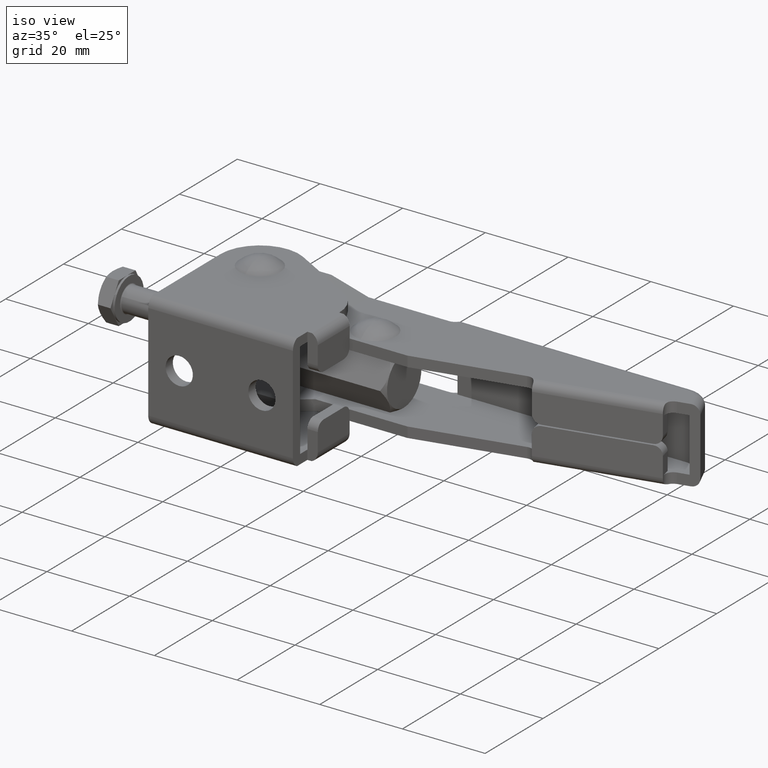
[diagram: clean part render]
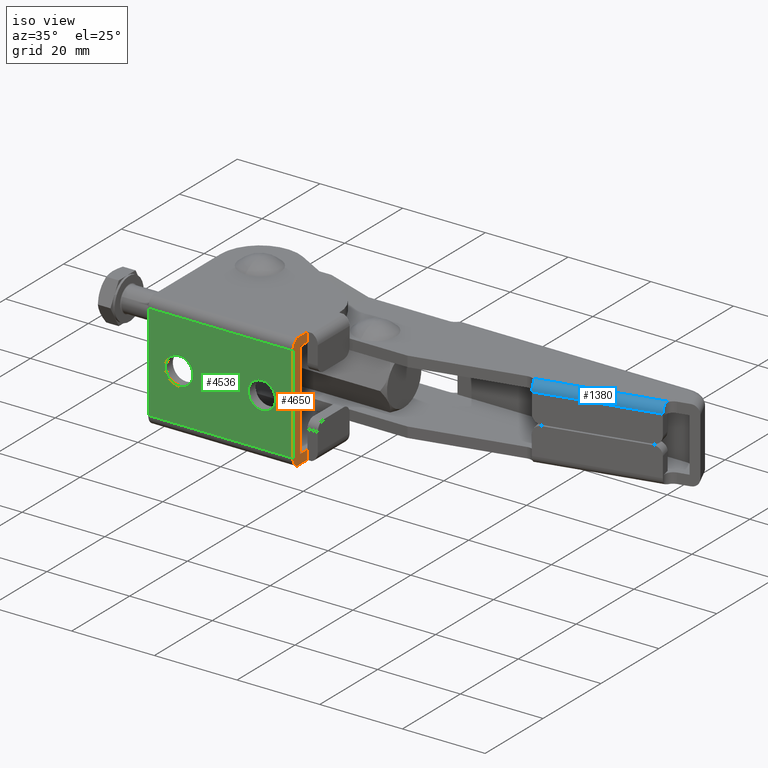
[diagram: same view with three faces highlighted in distinct colors, each labeled with its STEP entity id]
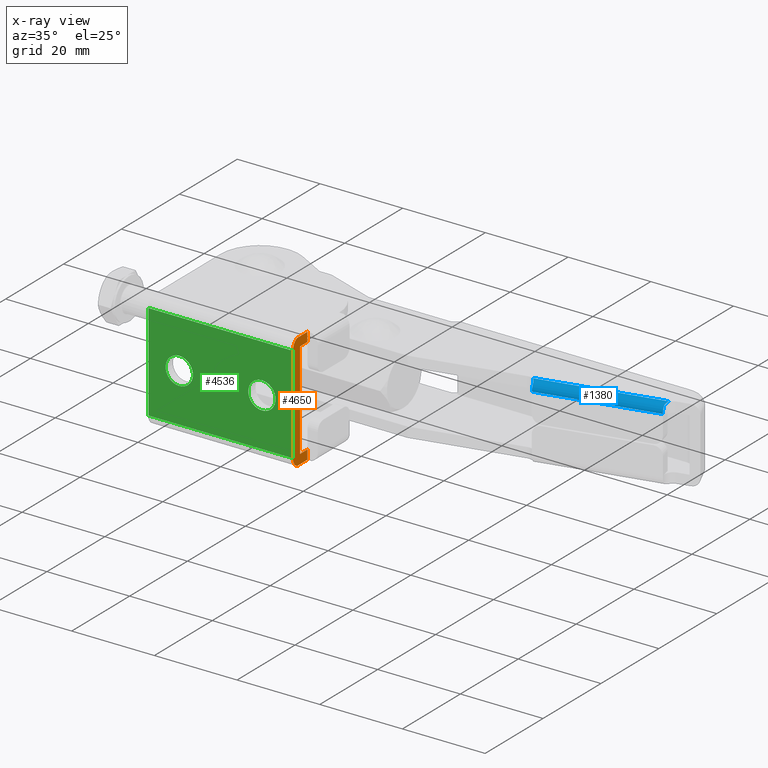
[diagram: x-ray of the same camera — body ghosted, the three highlighted faces saturated]
A machine part, iso view with three faces highlighted in distinct colors.
The next image is the same camera in x-ray (body ghosted, the three faces saturated) — at least one of them is partly hidden behind the body in this view.
Their STEP definitions:

[orange] entity #4650 — the highlighted planar face has unit normal (-1, 0, 0).
#262 = ORIENTED_EDGE ( 'NONE', *, *, #628, .T. ) ;
#378 = EDGE_CURVE ( 'NONE', #6844, #4172, #2910, .T. ) ;
#411 = ORIENTED_EDGE ( 'NONE', *, *, #4470, .F. ) ;
#423 = EDGE_CURVE ( 'NONE', #3513, #1820, #2400, .T. ) ;
#428 = CARTESIAN_POINT ( 'NONE',  ( 17.50000000000000000, -2.168404344971008900E-016, 11.73999999999999800 ) ) ;
#439 = ORIENTED_EDGE ( 'NONE', *, *, #6896, .T. ) ;
#441 = ORIENTED_EDGE ( 'NONE', *, *, #5211, .F. ) ;
#486 = EDGE_CURVE ( 'NONE', #1820, #6039, #941, .T. ) ;
#607 = AXIS2_PLACEMENT_3D ( 'NONE', #5991, #2744, #6556 ) ;
#628 = EDGE_CURVE ( 'NONE', #1750, #2153, #3140, .T. ) ;
#646 = LINE ( 'NONE', #5265, #4800 ) ;
#661 = CARTESIAN_POINT ( 'NONE',  ( 17.50000000000000000, 4.999999992330360900, 11.75000000000000000 ) ) ;
#916 = DIRECTION ( 'NONE',  ( -0.0000000000000000000, -1.000000000000000000, -0.0000000000000000000 ) ) ;
#941 = LINE ( 'NONE', #5789, #5118 ) ;
#1048 = CARTESIAN_POINT ( 'NONE',  ( 17.50000000000000000, 0.0000000000000000000, 0.0000000000000000000 ) ) ;
#1065 = ORIENTED_EDGE ( 'NONE', *, *, #4098, .T. ) ;
#1117 = PLANE ( 'NONE',  #4783 ) ;
#1223 = CARTESIAN_POINT ( 'NONE',  ( 17.50000000000000000, 18.60097000000000000, -11.75000000000000000 ) ) ;
#1252 = FACE_OUTER_BOUND ( 'NONE', #3754, .T. ) ;
#1333 = LINE ( 'NONE', #5395, #5322 ) ;
#1381 = ORIENTED_EDGE ( 'NONE', *, *, #2590, .F. ) ;
#1438 = DIRECTION ( 'NONE',  ( 1.000000000000000000, 0.0000000000000000000, 0.0000000000000000000 ) ) ;
#1500 = CARTESIAN_POINT ( 'NONE',  ( 17.50000000000000000, 1.417983516607932000, -14.00000000000000500 ) ) ;
#1656 = DIRECTION ( 'NONE',  ( 0.0000000000000000000, 0.0000000000000000000, 1.000000000000000000 ) ) ;
#1729 = CARTESIAN_POINT ( 'NONE',  ( 17.50000000000000000, 2.509999999999999300, -11.75000000000000000 ) ) ;
#1750 = VERTEX_POINT ( 'NONE', #661 ) ;
#1820 = VERTEX_POINT ( 'NONE', #5402 ) ;
#1978 = AXIS2_PLACEMENT_3D ( 'NONE', #5762, #2508, #6320 ) ;
#2000 = DIRECTION ( 'NONE',  ( -0.0000000000000000000, -0.0000000000000000000, -1.000000000000000000 ) ) ;
#2064 = VERTEX_POINT ( 'NONE', #1500 ) ;
#2153 = VERTEX_POINT ( 'NONE', #6472 ) ;
#2197 = DIRECTION ( 'NONE',  ( 0.0000000000000000000, -1.000000000000000000, 1.241390060575497800E-016 ) ) ;
#2275 = LINE ( 'NONE', #5461, #6625 ) ;
#2400 = CIRCLE ( 'NONE', #1978, 0.009999999999999592500 ) ;
#2487 = VERTEX_POINT ( 'NONE', #3827 ) ;
#2508 = DIRECTION ( 'NONE',  ( 1.000000000000000000, -0.0000000000000000000, 0.0000000000000000000 ) ) ;
#2590 = EDGE_CURVE ( 'NONE', #3108, #6268, #3126, .T. ) ;
#2727 = CARTESIAN_POINT ( 'NONE',  ( 17.50000000000000000, 2.509999999999999800, -14.00000000000000500 ) ) ;
#2744 = DIRECTION ( 'NONE',  ( 1.000000000000000000, 0.0000000000000000000, 0.0000000000000000000 ) ) ;
#2852 = DIRECTION ( 'NONE',  ( -0.0000000000000000000, 1.000000000000000000, -0.0000000000000000000 ) ) ;
#2890 = CARTESIAN_POINT ( 'NONE',  ( 17.50000000000000000, 2.509999999999999800, -11.73999999999999800 ) ) ;
#2910 = LINE ( 'NONE', #1048, #5640 ) ;
#3108 = VERTEX_POINT ( 'NONE', #1729 ) ;
#3126 = LINE ( 'NONE', #1223, #5702 ) ;
#3140 = LINE ( 'NONE', #5393, #4606 ) ;
#3278 = CARTESIAN_POINT ( 'NONE',  ( 17.50000000000000000, 2.509999999999999800, -14.25000000000000000 ) ) ;
#3434 = DIRECTION ( 'NONE',  ( 0.0000000000000000000, 0.0000000000000000000, -1.000000000000000000 ) ) ;
#3448 = CARTESIAN_POINT ( 'NONE',  ( 17.50000000000000000, 2.509999999997949000, 11.75000000000000000 ) ) ;
#3456 = CARTESIAN_POINT ( 'NONE',  ( 17.50000000000000000, 2.499999999999998700, -11.73999999999807500 ) ) ;
#3457 = ORIENTED_EDGE ( 'NONE', *, *, #486, .F. ) ;
#3513 = VERTEX_POINT ( 'NONE', #3448 ) ;
#3560 = ORIENTED_EDGE ( 'NONE', *, *, #423, .F. ) ;
#3570 = CIRCLE ( 'NONE', #4002, 2.510000000000002000 ) ;
#3754 = EDGE_LOOP ( 'NONE', ( #262, #1065, #4327, #4878, #5193, #439, #411, #1381, #441, #3457, #3560, #4827 ) ) ;
#3827 = CARTESIAN_POINT ( 'NONE',  ( 17.50000000000000000, 5.000000000000000000, -14.00000000000000500 ) ) ;
#4002 = AXIS2_PLACEMENT_3D ( 'NONE', #4696, #1438, #5244 ) ;
#4098 = EDGE_CURVE ( 'NONE', #2153, #5469, #2275, .T. ) ;
#4159 = LINE ( 'NONE', #2727, #5622 ) ;
#4172 = VERTEX_POINT ( 'NONE', #6646 ) ;
#4327 = ORIENTED_EDGE ( 'NONE', *, *, #5569, .T. ) ;
#4470 = EDGE_CURVE ( 'NONE', #6268, #2487, #1333, .T. ) ;
#4606 = VECTOR ( 'NONE', #6501, 1000.000000000000000 ) ;
#4650 = ADVANCED_FACE ( 'NONE', ( #1252 ), #1117, .F. ) ;
#4696 = CARTESIAN_POINT ( 'NONE',  ( 17.50000000000000000, 2.509999999999999800, -11.73999999999999800 ) ) ;
#4783 = AXIS2_PLACEMENT_3D ( 'NONE', #3278, #4920, #1656 ) ;
#4800 = VECTOR ( 'NONE', #916, 1000.000000000000000 ) ;
#4827 = ORIENTED_EDGE ( 'NONE', *, *, #5066, .F. ) ;
#4878 = ORIENTED_EDGE ( 'NONE', *, *, #378, .T. ) ;
#4881 = AXIS2_PLACEMENT_3D ( 'NONE', #2890, #6718, #3434 ) ;
#4920 = DIRECTION ( 'NONE',  ( -1.000000000000000000, 0.0000000000000000000, 0.0000000000000000000 ) ) ;
#5066 = EDGE_CURVE ( 'NONE', #1750, #3513, #646, .T. ) ;
#5118 = VECTOR ( 'NONE', #2000, 1000.000000000000000 ) ;
#5193 = ORIENTED_EDGE ( 'NONE', *, *, #6208, .T. ) ;
#5211 = EDGE_CURVE ( 'NONE', #6039, #3108, #6813, .T. ) ;
#5212 = CARTESIAN_POINT ( 'NONE',  ( 17.50000000000000000, 1.417983516607932600, 14.00000000000000400 ) ) ;
#5244 = DIRECTION ( 'NONE',  ( 0.0000000000000000000, 0.0000000000000000000, -1.000000000000000000 ) ) ;
#5265 = CARTESIAN_POINT ( 'NONE',  ( 17.50000000000000000, 18.60097000000000000, 11.75000000000000000 ) ) ;
#5311 = CARTESIAN_POINT ( 'NONE',  ( 17.50000000000000000, 4.999999992330358200, -11.75000000000000000 ) ) ;
#5322 = VECTOR ( 'NONE', #5949, 1000.000000000000000 ) ;
#5393 = CARTESIAN_POINT ( 'NONE',  ( 17.50000000000000000, 5.000000000000000000, 13.00000000000000200 ) ) ;
#5395 = CARTESIAN_POINT ( 'NONE',  ( 17.50000000000000000, 5.000000000000000000, -13.00000000000000200 ) ) ;
#5402 = CARTESIAN_POINT ( 'NONE',  ( 17.50000000000000000, 2.500000000000000000, 11.73999999999999800 ) ) ;
#5461 = CARTESIAN_POINT ( 'NONE',  ( 17.50000000000000000, 2.510000000000002900, 14.00000000000000400 ) ) ;
#5469 = VERTEX_POINT ( 'NONE', #5212 ) ;
#5569 = EDGE_CURVE ( 'NONE', #5469, #6844, #6356, .T. ) ;
#5622 = VECTOR ( 'NONE', #5982, 1000.000000000000000 ) ;
#5640 = VECTOR ( 'NONE', #7049, 1000.000000000000000 ) ;
#5702 = VECTOR ( 'NONE', #2852, 1000.000000000000000 ) ;
#5762 = CARTESIAN_POINT ( 'NONE',  ( 17.50000000000000000, 2.509999999999999800, 11.73999999999999800 ) ) ;
#5789 = CARTESIAN_POINT ( 'NONE',  ( 17.50000000000000000, 2.500000000000000000, 0.0000000000000000000 ) ) ;
#5949 = DIRECTION ( 'NONE',  ( -0.0000000000000000000, -0.0000000000000000000, -1.000000000000000000 ) ) ;
#5982 = DIRECTION ( 'NONE',  ( 0.0000000000000000000, 1.000000000000000000, 1.241390060575497800E-016 ) ) ;
#5991 = CARTESIAN_POINT ( 'NONE',  ( 17.50000000000000000, 2.509999999999999800, 11.73999999999999800 ) ) ;
#6039 = VERTEX_POINT ( 'NONE', #3456 ) ;
#6208 = EDGE_CURVE ( 'NONE', #4172, #2064, #3570, .T. ) ;
#6268 = VERTEX_POINT ( 'NONE', #5311 ) ;
#6320 = DIRECTION ( 'NONE',  ( 0.0000000000000000000, 0.0000000000000000000, -1.000000000000000000 ) ) ;
#6356 = CIRCLE ( 'NONE', #607, 2.510000000000000200 ) ;
#6472 = CARTESIAN_POINT ( 'NONE',  ( 17.50000000000000000, 4.999999992330360000, 14.00000000000000400 ) ) ;
#6501 = DIRECTION ( 'NONE',  ( -0.0000000000000000000, -0.0000000000000000000, 1.000000000000000000 ) ) ;
#6556 = DIRECTION ( 'NONE',  ( 0.0000000000000000000, 0.0000000000000000000, -1.000000000000000000 ) ) ;
#6625 = VECTOR ( 'NONE', #2197, 1000.000000000000000 ) ;
#6646 = CARTESIAN_POINT ( 'NONE',  ( 17.50000000000000000, -8.673617379884035500E-016, -11.73999999951721300 ) ) ;
#6718 = DIRECTION ( 'NONE',  ( 1.000000000000000000, 0.0000000000000000000, 0.0000000000000000000 ) ) ;
#6813 = CIRCLE ( 'NONE', #4881, 0.01000000000000132700 ) ;
#6844 = VERTEX_POINT ( 'NONE', #428 ) ;
#6896 = EDGE_CURVE ( 'NONE', #2064, #2487, #4159, .T. ) ;
#7049 = DIRECTION ( 'NONE',  ( -0.0000000000000000000, -0.0000000000000000000, -1.000000000000000000 ) ) ;

[blue] entity #1380 — the highlighted cylindrical surface (edge-blend (fillet) strip) has radius 2 mm, axis along (-0.9744, -0.225, 0).
#297 = CIRCLE ( 'NONE', #5232, 1.999999999999998900 ) ;
#301 = CARTESIAN_POINT ( 'NONE',  ( 88.56145309603066100, 26.77403322319478100, 8.548060634955495700 ) ) ;
#633 = DIRECTION ( 'NONE',  ( 0.9743700648208643000, 0.2249510541895392300, -0.0000000000000000000 ) ) ;
#652 = FACE_OUTER_BOUND ( 'NONE', #6087, .T. ) ;
#722 = ORIENTED_EDGE ( 'NONE', *, *, #3441, .F. ) ;
#748 = CARTESIAN_POINT ( 'NONE',  ( 61.26362057306839400, 20.46900592606193900, 8.545877394824060500 ) ) ;
#848 = CARTESIAN_POINT ( 'NONE',  ( 88.92602483049599000, 28.16751994497331100, 9.000000000000005300 ) ) ;
#871 = CARTESIAN_POINT ( 'NONE',  ( 88.60368172027251900, 26.55364501299249000, 8.322875656081695400 ) ) ;
#879 = DIRECTION ( 'NONE',  ( -0.9743700648208704100, -0.2249510541895119700, 0.0000000000000000000 ) ) ;
#1061 = LINE ( 'NONE', #6359, #6533 ) ;
#1301 = CARTESIAN_POINT ( 'NONE',  ( 61.09541027856763400, 20.83144496821951100, 8.798284885550515400 ) ) ;
#1380 = ADVANCED_FACE ( 'NONE', ( #652 ), #3187, .T. ) ;
#1419 = CARTESIAN_POINT ( 'NONE',  ( 61.32131990546213300, 20.25501549115686500, 8.322875656470005300 ) ) ;
#1425 = VERTEX_POINT ( 'NONE', #1419 ) ;
#1610 = VERTEX_POINT ( 'NONE', #2741 ) ;
#1840 = CARTESIAN_POINT ( 'NONE',  ( 60.82471977065232900, 21.18907406435871700, 8.946274934701117200 ) ) ;
#2269 = CARTESIAN_POINT ( 'NONE',  ( 88.92602483049599000, 28.16751994497331100, 9.000000000000005300 ) ) ;
#2398 = CARTESIAN_POINT ( 'NONE',  ( 60.46359657416910900, 21.48880774123681900, 9.000000000000005300 ) ) ;
#2418 = DIRECTION ( 'NONE',  ( -0.9743700647823491100, -0.2249510543563658900, -0.0000000000000000000 ) ) ;
#2494 = CARTESIAN_POINT ( 'NONE',  ( 88.75856198612761700, 27.90154672568510800, 8.991916871770435200 ) ) ;
#2629 = B_SPLINE_CURVE_WITH_KNOTS ( 'NONE', 3,
 ( #2915, #4538, #748, #4553, #1301, #5105, #1840, #5651, #2398, #6205 ),
 .UNSPECIFIED., .F., .F.,
 ( 4, 2, 2, 2, 4 ),
 ( 0.0000000000000000000, 0.0004695840331520906600, 0.0009391680663041813200, 0.001408752099456271900, 0.001878336132608362600 ),
 .UNSPECIFIED. ) ;
#2682 = AXIS2_PLACEMENT_3D ( 'NONE', #3888, #4975, #5505 ) ;
#2741 = CARTESIAN_POINT ( 'NONE',  ( 88.60368172027251900, 26.55364501299249000, 8.322875656081695400 ) ) ;
#2915 = CARTESIAN_POINT ( 'NONE',  ( 61.32131990546213300, 20.25501549115686500, 8.322875656470005300 ) ) ;
#3030 = CARTESIAN_POINT ( 'NONE',  ( 88.60057703358117500, 27.46379957686428200, 8.909548841002463200 ) ) ;
#3181 = CARTESIAN_POINT ( 'NONE',  ( 88.71615724700001200, 26.06645997999999800, 7.000000000000005300 ) ) ;
#3187 = CYLINDRICAL_SURFACE ( 'NONE', #2682, 2.000000000000000000 ) ;
#3237 = ORIENTED_EDGE ( 'NONE', *, *, #7005, .F. ) ;
#3441 = EDGE_CURVE ( 'NONE', #1610, #6390, #297, .T. ) ;
#3585 = CARTESIAN_POINT ( 'NONE',  ( 88.54846484354227700, 27.03164560560154700, 8.726245155568586000 ) ) ;
#3825 = LINE ( 'NONE', #5655, #6565 ) ;
#3851 = EDGE_CURVE ( 'NONE', #5073, #1425, #3982, .T. ) ;
#3888 = CARTESIAN_POINT ( 'NONE',  ( 13.22574101805603200, 10.69073235248056600, 7.000000000000004400 ) ) ;
#3909 = CARTESIAN_POINT ( 'NONE',  ( 88.26625513862092000, 28.01520010964172500, 7.000000000000004400 ) ) ;
#3921 = EDGE_CURVE ( 'NONE', #4787, #4699, #1061, .T. ) ;
#3982 = CIRCLE ( 'NONE', #6078, 1.999999999999998200 ) ;
#4129 = CARTESIAN_POINT ( 'NONE',  ( 88.58008795462836800, 26.65584083982630800, 8.441802929806604200 ) ) ;
#4447 = DIRECTION ( 'NONE',  ( 0.2249510541895359300, -0.9743700648208649700, 4.336808689942020100E-015 ) ) ;
#4528 = ORIENTED_EDGE ( 'NONE', *, *, #5429, .F. ) ;
#4538 = CARTESIAN_POINT ( 'NONE',  ( 61.29774158131733900, 20.35714443323387400, 8.441725095055142300 ) ) ;
#4553 = CARTESIAN_POINT ( 'NONE',  ( 61.16215136108856900, 20.70745597108780300, 8.725424714254337700 ) ) ;
#4569 = ORIENTED_EDGE ( 'NONE', *, *, #3921, .F. ) ;
#4654 = CARTESIAN_POINT ( 'NONE',  ( 88.83379981930006900, 28.03865569638994200, 9.000000000000003600 ) ) ;
#4684 = DIRECTION ( 'NONE',  ( -0.2249510541895117200, 0.9743700648208705200, 0.0000000000000000000 ) ) ;
#4699 = VERTEX_POINT ( 'NONE', #2269 ) ;
#4787 = VERTEX_POINT ( 'NONE', #6715 ) ;
#4915 = ORIENTED_EDGE ( 'NONE', *, *, #6721, .F. ) ;
#4975 = DIRECTION ( 'NONE',  ( -0.9743700647823492200, -0.2249510543563659200, 0.0000000000000000000 ) ) ;
#5068 = ORIENTED_EDGE ( 'NONE', *, *, #3851, .F. ) ;
#5073 = VERTEX_POINT ( 'NONE', #6938 ) ;
#5105 = CARTESIAN_POINT ( 'NONE',  ( 60.92729737667889400, 21.07174460204336000, 8.908561440051832000 ) ) ;
#5232 = AXIS2_PLACEMENT_3D ( 'NONE', #3909, #633, #4447 ) ;
#5429 = EDGE_CURVE ( 'NONE', #4699, #1610, #6329, .T. ) ;
#5505 = DIRECTION ( 'NONE',  ( 0.2249510543563659200, -0.9743700647823492200, 0.0000000000000000000 ) ) ;
#5651 = CARTESIAN_POINT ( 'NONE',  ( 60.59397994581442500, 21.39641453500686200, 8.991569747175892900 ) ) ;
#5655 = CARTESIAN_POINT ( 'NONE',  ( 61.43379543300000700, 19.76783045799999900, 7.000000000000004400 ) ) ;
#5679 = CARTESIAN_POINT ( 'NONE',  ( 60.98389332462097900, 21.71657058764173700, 7.000000000000004400 ) ) ;
#6078 = AXIS2_PLACEMENT_3D ( 'NONE', #5679, #879, #4684 ) ;
#6087 = EDGE_LOOP ( 'NONE', ( #5068, #3237, #722, #4528, #4569, #4915 ) ) ;
#6205 = CARTESIAN_POINT ( 'NONE',  ( 60.32412363313899600, 21.56425075240090900, 9.000000000000005300 ) ) ;
#6302 = CARTESIAN_POINT ( 'NONE',  ( 88.64101590663692300, 27.61253301648791600, 8.946687898231855800 ) ) ;
#6329 = B_SPLINE_CURVE_WITH_KNOTS ( 'NONE', 3,
 ( #848, #4654, #2494, #6302, #3030, #6866, #3585, #301, #4129, #871 ),
 .UNSPECIFIED., .F., .F.,
 ( 4, 2, 2, 2, 4 ),
 ( 0.0000000000000000000, 0.0004695840333571317200, 0.0009391680667142634400, 0.001408752100071395300, 0.001878336133428526900 ),
 .UNSPECIFIED. ) ;
#6359 = CARTESIAN_POINT ( 'NONE',  ( 88.26625513828727800, 28.01520010956469900, 9.000000000000005300 ) ) ;
#6390 = VERTEX_POINT ( 'NONE', #3181 ) ;
#6533 = VECTOR ( 'NONE', #6931, 1000.000000000000100 ) ;
#6565 = VECTOR ( 'NONE', #2418, 1000.000000000000100 ) ;
#6715 = CARTESIAN_POINT ( 'NONE',  ( 60.32412363313899600, 21.56425075240090900, 9.000000000000005300 ) ) ;
#6721 = EDGE_CURVE ( 'NONE', #1425, #4787, #2629, .T. ) ;
#6866 = CARTESIAN_POINT ( 'NONE',  ( 88.55430408614537900, 27.17400506971113600, 8.799800317933307500 ) ) ;
#6931 = DIRECTION ( 'NONE',  ( 0.9743700647823491100, 0.2249510543563658900, -0.0000000000000000000 ) ) ;
#6938 = CARTESIAN_POINT ( 'NONE',  ( 61.43379543299999300, 19.76783045799999900, 7.000000000000005300 ) ) ;
#7005 = EDGE_CURVE ( 'NONE', #6390, #5073, #3825, .T. ) ;

[green] entity #4536 — the highlighted planar face has unit normal (0, 1, 0).
#129 = CIRCLE ( 'NONE', #4612, 3.300000000000000300 ) ;
#378 = EDGE_CURVE ( 'NONE', #6844, #4172, #2910, .T. ) ;
#428 = CARTESIAN_POINT ( 'NONE',  ( 17.50000000000000000, -2.168404344971008900E-016, 11.73999999999999800 ) ) ;
#509 = CARTESIAN_POINT ( 'NONE',  ( -10.00000000000000200, 0.0000000000000000000, 3.300000000000000300 ) ) ;
#560 = DIRECTION ( 'NONE',  ( 0.0000000000000000000, -1.000000000000000000, 0.0000000000000000000 ) ) ;
#655 = FACE_BOUND ( 'NONE', #6332, .T. ) ;
#755 = ORIENTED_EDGE ( 'NONE', *, *, #3344, .F. ) ;
#773 = CARTESIAN_POINT ( 'NONE',  ( 9.999999999999998200, 0.0000000000000000000, 3.300000000000001200 ) ) ;
#860 = EDGE_CURVE ( 'NONE', #3018, #6844, #3393, .T. ) ;
#933 = VECTOR ( 'NONE', #4779, 1000.000000000000000 ) ;
#977 = CARTESIAN_POINT ( 'NONE',  ( -17.50000000000000000, 0.0000000000000000000, 0.0000000000000000000 ) ) ;
#1002 = CARTESIAN_POINT ( 'NONE',  ( -17.50000000000000000, -8.673617379884035500E-016, -11.73999999951721300 ) ) ;
#1048 = CARTESIAN_POINT ( 'NONE',  ( 17.50000000000000000, 0.0000000000000000000, 0.0000000000000000000 ) ) ;
#1059 = EDGE_LOOP ( 'NONE', ( #6413, #1606, #3207, #4121 ) ) ;
#1135 = CARTESIAN_POINT ( 'NONE',  ( 0.0000000000000000000, -1.734723475976807100E-015, -11.73999999903442800 ) ) ;
#1291 = VERTEX_POINT ( 'NONE', #509 ) ;
#1606 = ORIENTED_EDGE ( 'NONE', *, *, #1894, .F. ) ;
#1728 = DIRECTION ( 'NONE',  ( 0.0000000000000000000, -1.000000000000000000, 0.0000000000000000000 ) ) ;
#1759 = EDGE_LOOP ( 'NONE', ( #2961, #5276 ) ) ;
#1894 = EDGE_CURVE ( 'NONE', #2417, #3018, #4016, .T. ) ;
#1927 = VECTOR ( 'NONE', #6409, 1000.000000000000000 ) ;
#1976 = DIRECTION ( 'NONE',  ( 0.0000000000000000000, -1.000000000000000000, 0.0000000000000000000 ) ) ;
#2055 = DIRECTION ( 'NONE',  ( 0.0000000000000000000, 0.0000000000000000000, 1.000000000000000000 ) ) ;
#2091 = FACE_BOUND ( 'NONE', #1759, .T. ) ;
#2417 = VERTEX_POINT ( 'NONE', #1002 ) ;
#2764 = DIRECTION ( 'NONE',  ( 0.0000000000000000000, -1.000000000000000000, 0.0000000000000000000 ) ) ;
#2910 = LINE ( 'NONE', #1048, #5640 ) ;
#2954 = CARTESIAN_POINT ( 'NONE',  ( -10.00000000000000200, 0.0000000000000000000, -3.300000000000000300 ) ) ;
#2961 = ORIENTED_EDGE ( 'NONE', *, *, #5471, .F. ) ;
#3018 = VERTEX_POINT ( 'NONE', #6520 ) ;
#3028 = EDGE_CURVE ( 'NONE', #6493, #6754, #5104, .T. ) ;
#3177 = ORIENTED_EDGE ( 'NONE', *, *, #3028, .F. ) ;
#3207 = ORIENTED_EDGE ( 'NONE', *, *, #4679, .T. ) ;
#3344 = EDGE_CURVE ( 'NONE', #6754, #6493, #6130, .T. ) ;
#3393 = LINE ( 'NONE', #5845, #1927 ) ;
#3433 = AXIS2_PLACEMENT_3D ( 'NONE', #3836, #560, #4365 ) ;
#3678 = PLANE ( 'NONE',  #5665 ) ;
#3768 = EDGE_CURVE ( 'NONE', #1291, #6759, #129, .T. ) ;
#3799 = VECTOR ( 'NONE', #3884, 1000.000000000000000 ) ;
#3836 = CARTESIAN_POINT ( 'NONE',  ( 9.999999999999998200, 0.0000000000000000000, 0.0000000000000000000 ) ) ;
#3884 = DIRECTION ( 'NONE',  ( 1.000000000000000000, 0.0000000000000000000, 0.0000000000000000000 ) ) ;
#3987 = LINE ( 'NONE', #1135, #3799 ) ;
#3989 = CIRCLE ( 'NONE', #5121, 3.300000000000000300 ) ;
#4016 = LINE ( 'NONE', #977, #933 ) ;
#4121 = ORIENTED_EDGE ( 'NONE', *, *, #378, .F. ) ;
#4172 = VERTEX_POINT ( 'NONE', #6646 ) ;
#4357 = CARTESIAN_POINT ( 'NONE',  ( 9.999999999999998200, 0.0000000000000000000, -3.300000000000001200 ) ) ;
#4365 = DIRECTION ( 'NONE',  ( 0.0000000000000000000, 0.0000000000000000000, -1.000000000000000000 ) ) ;
#4536 = ADVANCED_FACE ( 'NONE', ( #655, #2091, #5005 ), #3678, .F. ) ;
#4612 = AXIS2_PLACEMENT_3D ( 'NONE', #4992, #1728, #5554 ) ;
#4679 = EDGE_CURVE ( 'NONE', #2417, #4172, #3987, .T. ) ;
#4768 = CARTESIAN_POINT ( 'NONE',  ( -17.50000000000000000, 0.0000000000000000000, -11.73999999999999800 ) ) ;
#4779 = DIRECTION ( 'NONE',  ( 0.0000000000000000000, 0.0000000000000000000, 1.000000000000000000 ) ) ;
#4992 = CARTESIAN_POINT ( 'NONE',  ( -10.00000000000000200, 0.0000000000000000000, 0.0000000000000000000 ) ) ;
#5005 = FACE_OUTER_BOUND ( 'NONE', #1059, .T. ) ;
#5029 = AXIS2_PLACEMENT_3D ( 'NONE', #6021, #2764, #6583 ) ;
#5104 = CIRCLE ( 'NONE', #5029, 3.300000000000001200 ) ;
#5121 = AXIS2_PLACEMENT_3D ( 'NONE', #5243, #1976, #5794 ) ;
#5243 = CARTESIAN_POINT ( 'NONE',  ( -10.00000000000000200, 0.0000000000000000000, 0.0000000000000000000 ) ) ;
#5276 = ORIENTED_EDGE ( 'NONE', *, *, #3768, .F. ) ;
#5315 = DIRECTION ( 'NONE',  ( 0.0000000000000000000, 1.000000000000000000, 0.0000000000000000000 ) ) ;
#5471 = EDGE_CURVE ( 'NONE', #6759, #1291, #3989, .T. ) ;
#5554 = DIRECTION ( 'NONE',  ( 0.0000000000000000000, 0.0000000000000000000, -1.000000000000000000 ) ) ;
#5640 = VECTOR ( 'NONE', #7049, 1000.000000000000000 ) ;
#5665 = AXIS2_PLACEMENT_3D ( 'NONE', #4768, #5315, #2055 ) ;
#5794 = DIRECTION ( 'NONE',  ( 0.0000000000000000000, 0.0000000000000000000, -1.000000000000000000 ) ) ;
#5845 = CARTESIAN_POINT ( 'NONE',  ( 0.0000000000000000000, 0.0000000000000000000, 11.73999999999999800 ) ) ;
#6021 = CARTESIAN_POINT ( 'NONE',  ( 9.999999999999998200, 0.0000000000000000000, 0.0000000000000000000 ) ) ;
#6130 = CIRCLE ( 'NONE', #3433, 3.300000000000001200 ) ;
#6332 = EDGE_LOOP ( 'NONE', ( #3177, #755 ) ) ;
#6409 = DIRECTION ( 'NONE',  ( 1.000000000000000000, 0.0000000000000000000, 0.0000000000000000000 ) ) ;
#6413 = ORIENTED_EDGE ( 'NONE', *, *, #860, .F. ) ;
#6493 = VERTEX_POINT ( 'NONE', #4357 ) ;
#6520 = CARTESIAN_POINT ( 'NONE',  ( -17.50000000000000000, -2.168404344971008900E-016, 11.73999999999999800 ) ) ;
#6583 = DIRECTION ( 'NONE',  ( 0.0000000000000000000, 0.0000000000000000000, -1.000000000000000000 ) ) ;
#6646 = CARTESIAN_POINT ( 'NONE',  ( 17.50000000000000000, -8.673617379884035500E-016, -11.73999999951721300 ) ) ;
#6754 = VERTEX_POINT ( 'NONE', #773 ) ;
#6759 = VERTEX_POINT ( 'NONE', #2954 ) ;
#6844 = VERTEX_POINT ( 'NONE', #428 ) ;
#7049 = DIRECTION ( 'NONE',  ( -0.0000000000000000000, -0.0000000000000000000, -1.000000000000000000 ) ) ;